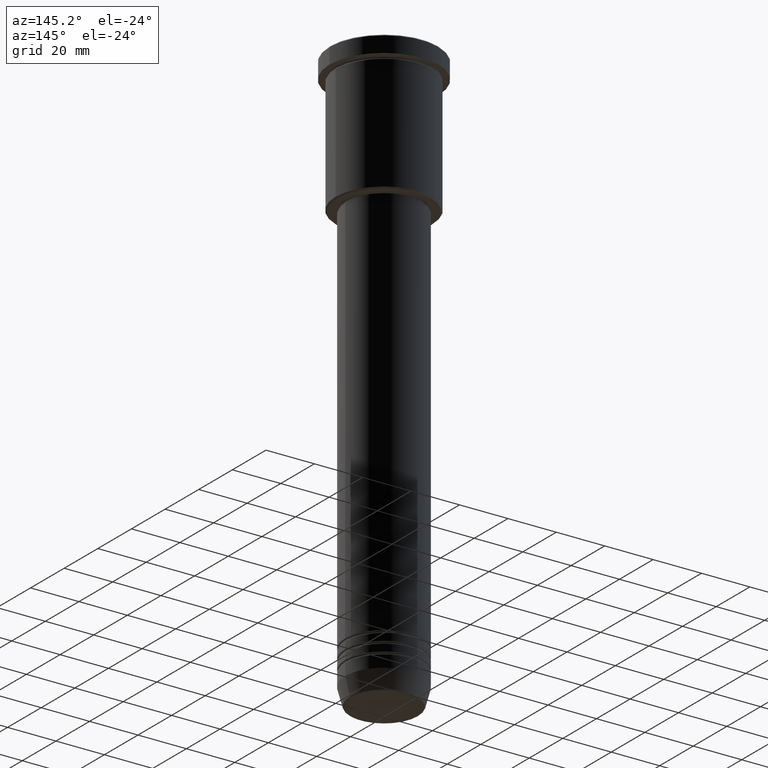
[diagram: clean part render]
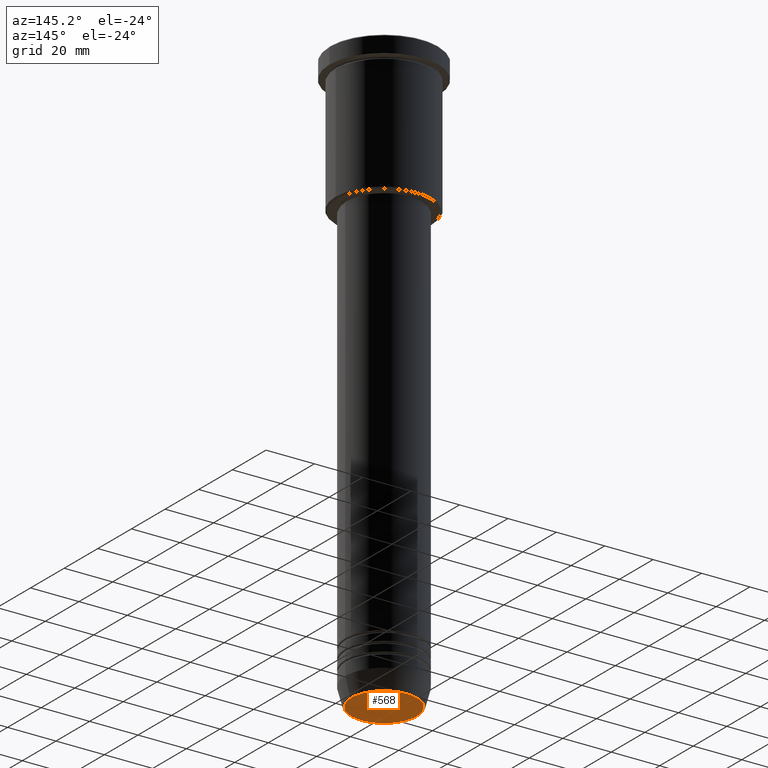
[diagram: same view with one face highlighted and labeled with its STEP entity id]
A machine part, auxiliary view. The second image highlights one B-rep face of the part: STEP entity #568.
In plain terms, the highlighted planar face has unit normal (0, -0, 1).
Its self-contained STEP definition (entity closure, byte-faithful):
#9 = CIRCLE ( 'NONE', #739, 13.60671756277710109 ) ;
#44 = AXIS2_PLACEMENT_3D ( 'NONE', #188, #467, #655 ) ;
#116 = CARTESIAN_POINT ( 'NONE',  ( -13.60671756277710109, 1.695915260300172047E-15, -240.0000000000000000 ) ) ;
#182 = DIRECTION ( 'NONE',  ( 1.000000000000000000, 0.000000000000000000, 0.000000000000000000 ) ) ;
#188 = CARTESIAN_POINT ( 'NONE',  ( 0.000000000000000000, 0.000000000000000000, -240.0000000000000000 ) ) ;
#319 = ORIENTED_EDGE ( 'NONE', *, *, #598, .T. ) ;
#367 = FACE_OUTER_BOUND ( 'NONE', #915, .T. ) ;
#372 = CIRCLE ( 'NONE', #44, 13.60671756277710109 ) ;
#396 = DIRECTION ( 'NONE',  ( 0.000000000000000000, -0.000000000000000000, 1.000000000000000000 ) ) ;
#467 = DIRECTION ( 'NONE',  ( 0.000000000000000000, 0.000000000000000000, -1.000000000000000000 ) ) ;
#472 = VERTEX_POINT ( 'NONE', #557 ) ;
#557 = CARTESIAN_POINT ( 'NONE',  ( 13.60671756277710109, 0.000000000000000000, -240.0000000000000000 ) ) ;
#568 = ADVANCED_FACE ( 'NONE', ( #367 ), #836, .F. ) ;
#573 = DIRECTION ( 'NONE',  ( 0.000000000000000000, 0.000000000000000000, -1.000000000000000000 ) ) ;
#598 = EDGE_CURVE ( 'NONE', #599, #472, #372, .T. ) ;
#599 = VERTEX_POINT ( 'NONE', #116 ) ;
#655 = DIRECTION ( 'NONE',  ( 1.000000000000000000, 0.000000000000000000, 0.000000000000000000 ) ) ;
#663 = CARTESIAN_POINT ( 'NONE',  ( 0.000000000000000000, 0.000000000000000000, -240.0000000000000000 ) ) ;
#669 = EDGE_CURVE ( 'NONE', #472, #599, #9, .T. ) ;
#739 = AXIS2_PLACEMENT_3D ( 'NONE', #923, #573, #182 ) ;
#836 = PLANE ( 'NONE',  #994 ) ;
#915 = EDGE_LOOP ( 'NONE', ( #1155, #319 ) ) ;
#923 = CARTESIAN_POINT ( 'NONE',  ( 0.000000000000000000, 0.000000000000000000, -240.0000000000000000 ) ) ;
#994 = AXIS2_PLACEMENT_3D ( 'NONE', #663, #396, #1121 ) ;
#1121 = DIRECTION ( 'NONE',  ( 1.000000000000000000, 0.000000000000000000, 0.000000000000000000 ) ) ;
#1155 = ORIENTED_EDGE ( 'NONE', *, *, #669, .T. ) ;